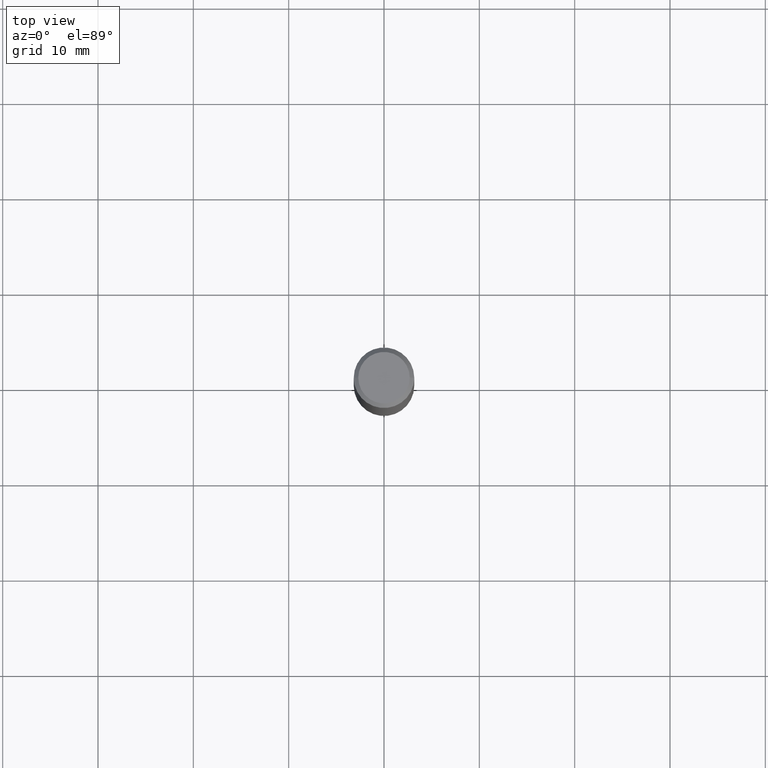
[diagram: clean part render]
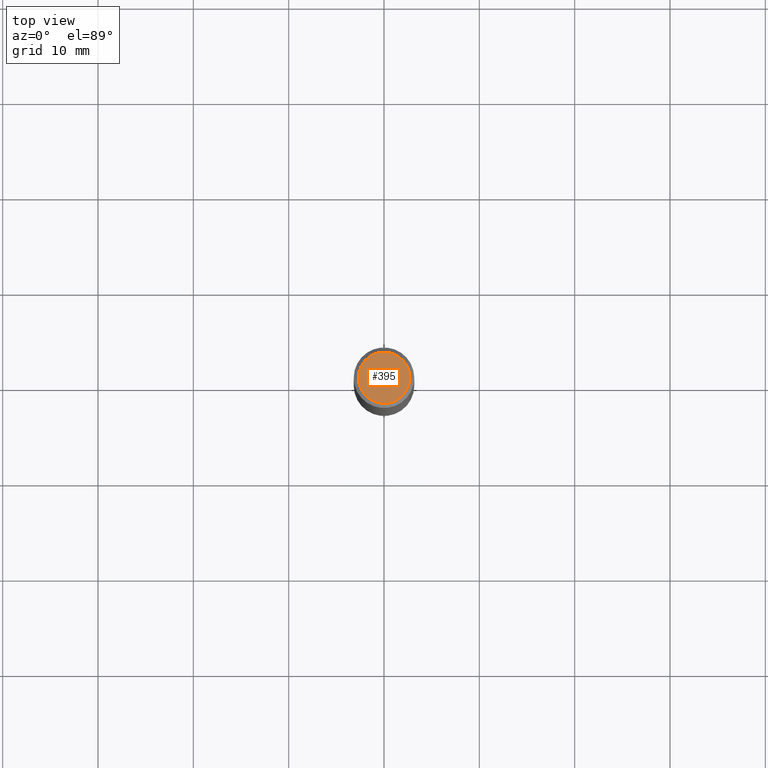
[diagram: same view with one face highlighted and labeled with its STEP entity id]
A machine part, top view. The second image highlights one B-rep face of the part: STEP entity #395.
In plain terms, the highlighted planar face has unit normal (0, -0, -1).
Its self-contained STEP definition (entity closure, byte-faithful):
#24 = AXIS2_PLACEMENT_3D ( 'NONE', #440, #484, #446 ) ;
#59 = AXIS2_PLACEMENT_3D ( 'NONE', #295, #358, #481 ) ;
#101 = CIRCLE ( 'NONE', #24, 0.1062499999999999972 ) ;
#144 = DIRECTION ( 'NONE',  ( -2.445468806185136597E-29, 3.491481338843145583E-15, 1.000000000000000000 ) ) ;
#181 = CARTESIAN_POINT ( 'NONE',  ( 0.1062499999999999972, -8.259777185439880671E-16, -2.602374448187577153E-17 ) ) ;
#254 = CIRCLE ( 'NONE', #268, 0.1062499999999999972 ) ;
#268 = AXIS2_PLACEMENT_3D ( 'NONE', #434, #144, #442 ) ;
#280 = VERTEX_POINT ( 'NONE', #181 ) ;
#289 = ORIENTED_EDGE ( 'NONE', *, *, #334, .T. ) ;
#295 = CARTESIAN_POINT ( 'NONE',  ( 3.182012767528659158E-46, -4.543070911265533518E-32, -1.301187224094062675E-17 ) ) ;
#311 = ORIENTED_EDGE ( 'NONE', *, *, #344, .T. ) ;
#314 = VERTEX_POINT ( 'NONE', #320 ) ;
#320 = CARTESIAN_POINT ( 'NONE',  ( -0.1062499999999999972, 7.746724220558198188E-16, -2.602374448188655674E-17 ) ) ;
#321 = PLANE ( 'NONE',  #59 ) ;
#334 = EDGE_CURVE ( 'NONE', #280, #314, #101, .T. ) ;
#344 = EDGE_CURVE ( 'NONE', #314, #280, #254, .T. ) ;
#356 = FACE_OUTER_BOUND ( 'NONE', #466, .T. ) ;
#358 = DIRECTION ( 'NONE',  ( 2.438088387897960049E-29, -3.491481338843145188E-15, -1.000000000000000000 ) ) ;
#395 = ADVANCED_FACE ( 'NONE', ( #356 ), #321, .F. ) ;
#434 = CARTESIAN_POINT ( 'NONE',  ( 6.364025535057318316E-46, -9.086141822531067035E-32, -2.602374448188125350E-17 ) ) ;
#440 = CARTESIAN_POINT ( 'NONE',  ( 6.364025535057318316E-46, -9.086141822531067035E-32, -2.602374448188125350E-17 ) ) ;
#442 = DIRECTION ( 'NONE',  ( 1.000000000000000000, -6.982962677686266711E-15, 4.877714189860772023E-29 ) ) ;
#446 = DIRECTION ( 'NONE',  ( 1.000000000000000000, -6.982962677686266711E-15, 4.877714189860772023E-29 ) ) ;
#466 = EDGE_LOOP ( 'NONE', ( #311, #289 ) ) ;
#481 = DIRECTION ( 'NONE',  ( -1.000000000000000000, 6.982962677686265922E-15, -4.876176775795935793E-29 ) ) ;
#484 = DIRECTION ( 'NONE',  ( -2.445468806185136597E-29, 3.491481338843145583E-15, 1.000000000000000000 ) ) ;